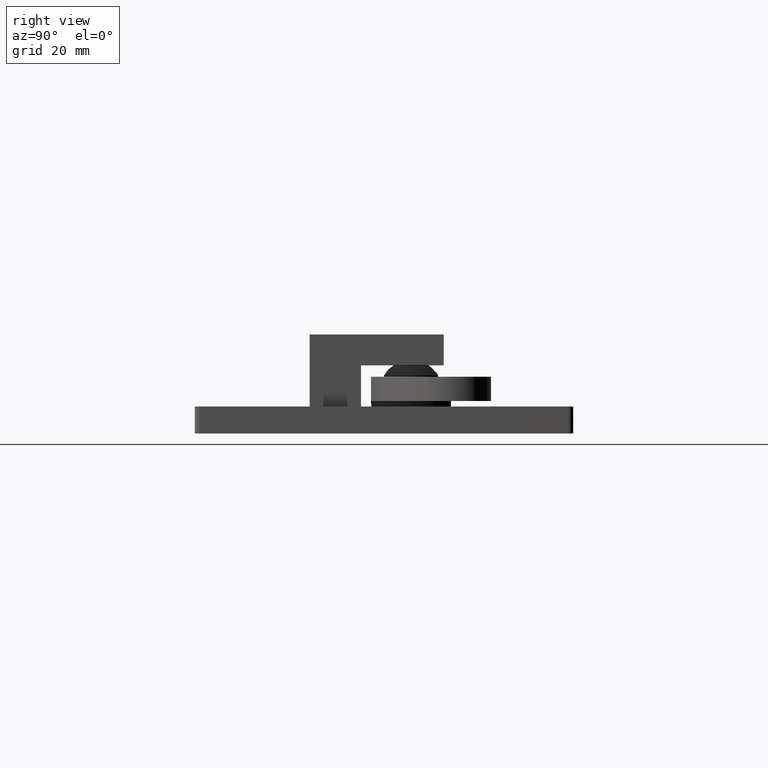
[diagram: clean part render]
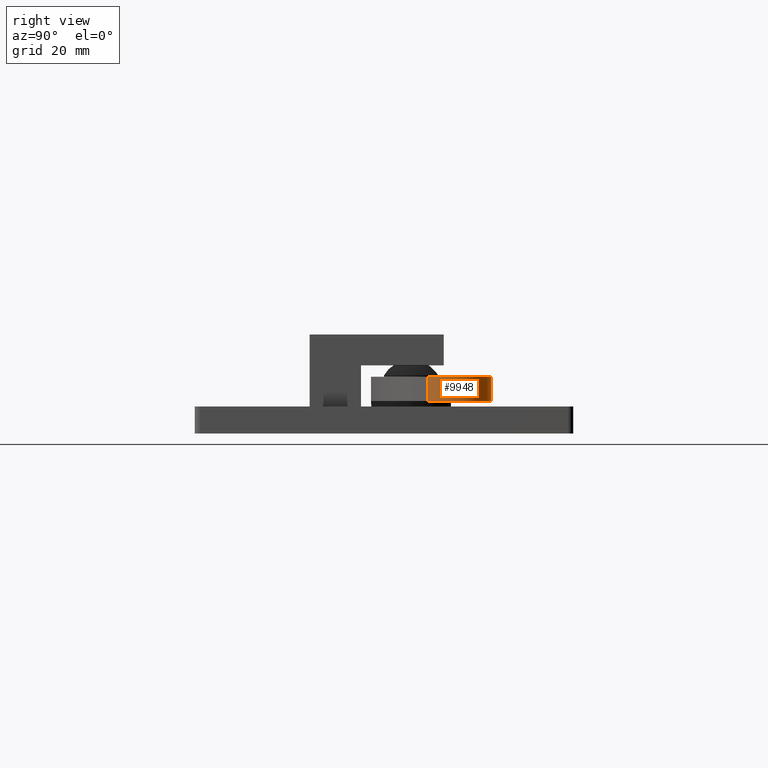
[diagram: same view with one face highlighted and labeled with its STEP entity id]
A machine part, right view. The second image highlights one B-rep face of the part: STEP entity #9948.
In plain terms, the highlighted cylindrical surface (partial cylindrical patch) has radius 7.4 mm, axis along (-0, 0, -1).
Its self-contained STEP definition (entity closure, byte-faithful):
#104 = DIRECTION ( 'NONE',  ( 1.000000000000000000, 0.000000000000000000, 0.000000000000000000 ) ) ;
#716 = VERTEX_POINT ( 'NONE', #16783 ) ;
#1180 = EDGE_CURVE ( 'NONE', #716, #15115, #17584, .T. ) ;
#1421 = DIRECTION ( 'NONE',  ( 2.821186441973490019E-37, -1.128474576789396008E-36, 1.000000000000000000 ) ) ;
#1692 = CARTESIAN_POINT ( 'NONE',  ( -45.09546788749673141, -7.387983870967704370, 2.250000000000000444 ) ) ;
#2306 = AXIS2_PLACEMENT_3D ( 'NONE', #1692, #15105, #104 ) ;
#2981 = ORIENTED_EDGE ( 'NONE', *, *, #13559, .T. ) ;
#3004 = CARTESIAN_POINT ( 'NONE',  ( -51.14770494122973332, -3.129999999999974136, 2.250000000000000444 ) ) ;
#3267 = DIRECTION ( 'NONE',  ( 1.000000000000000000, 0.000000000000000000, 0.000000000000000000 ) ) ;
#4662 = ORIENTED_EDGE ( 'NONE', *, *, #5514, .F. ) ;
#5514 = EDGE_CURVE ( 'NONE', #8530, #716, #17284, .T. ) ;
#5948 = DIRECTION ( 'NONE',  ( -2.821186441973490019E-37, 1.128474576789396008E-36, -1.000000000000000000 ) ) ;
#6016 = CYLINDRICAL_SURFACE ( 'NONE', #19381, 7.399999999999989697 ) ;
#6458 = EDGE_CURVE ( 'NONE', #8530, #7012, #12766, .T. ) ;
#7012 = VERTEX_POINT ( 'NONE', #16360 ) ;
#7491 = CARTESIAN_POINT ( 'NONE',  ( -45.09546788749673141, -7.387983870967704370, 2.250000000000000444 ) ) ;
#7513 = AXIS2_PLACEMENT_3D ( 'NONE', #16445, #1421, #3267 ) ;
#8306 = CIRCLE ( 'NONE', #7513, 7.399999999999989697 ) ;
#8530 = VERTEX_POINT ( 'NONE', #3004 ) ;
#9082 = VECTOR ( 'NONE', #16946, 1000.000000000000000 ) ;
#9948 = ADVANCED_FACE ( 'NONE', ( #15254 ), #6016, .T. ) ;
#10493 = DIRECTION ( 'NONE',  ( -2.821186441973490019E-37, 1.128474576789396008E-36, -1.000000000000000000 ) ) ;
#10886 = CARTESIAN_POINT ( 'NONE',  ( -39.04606969297623209, -11.64999999999996305, -2.250000000000000000 ) ) ;
#12198 = EDGE_LOOP ( 'NONE', ( #2981, #14586, #4662, #12549 ) ) ;
#12549 = ORIENTED_EDGE ( 'NONE', *, *, #6458, .T. ) ;
#12713 = CARTESIAN_POINT ( 'NONE',  ( -39.04606969297623209, -11.64999999999996305, 2.250000000000000444 ) ) ;
#12766 = LINE ( 'NONE', #19479, #15149 ) ;
#13559 = EDGE_CURVE ( 'NONE', #7012, #15115, #8306, .T. ) ;
#14586 = ORIENTED_EDGE ( 'NONE', *, *, #1180, .F. ) ;
#14868 = DIRECTION ( 'NONE',  ( -1.000000000000000000, 0.000000000000000000, 0.000000000000000000 ) ) ;
#15105 = DIRECTION ( 'NONE',  ( 2.821186441973490019E-37, -1.128474576789396008E-36, 1.000000000000000000 ) ) ;
#15115 = VERTEX_POINT ( 'NONE', #10886 ) ;
#15149 = VECTOR ( 'NONE', #5948, 1000.000000000000000 ) ;
#15254 = FACE_OUTER_BOUND ( 'NONE', #12198, .T. ) ;
#16360 = CARTESIAN_POINT ( 'NONE',  ( -51.14770494122973332, -3.129999999999974136, -2.250000000000000000 ) ) ;
#16445 = CARTESIAN_POINT ( 'NONE',  ( -45.09546788749673141, -7.387983870967704370, -2.250000000000000000 ) ) ;
#16783 = CARTESIAN_POINT ( 'NONE',  ( -39.04606969297623209, -11.64999999999996305, 2.250000000000000444 ) ) ;
#16946 = DIRECTION ( 'NONE',  ( -2.821186441973490019E-37, 1.128474576789396008E-36, -1.000000000000000000 ) ) ;
#17284 = CIRCLE ( 'NONE', #2306, 7.399999999999989697 ) ;
#17584 = LINE ( 'NONE', #12713, #9082 ) ;
#19381 = AXIS2_PLACEMENT_3D ( 'NONE', #7491, #10493, #14868 ) ;
#19479 = CARTESIAN_POINT ( 'NONE',  ( -51.14770494122973332, -3.129999999999974136, 2.250000000000000444 ) ) ;